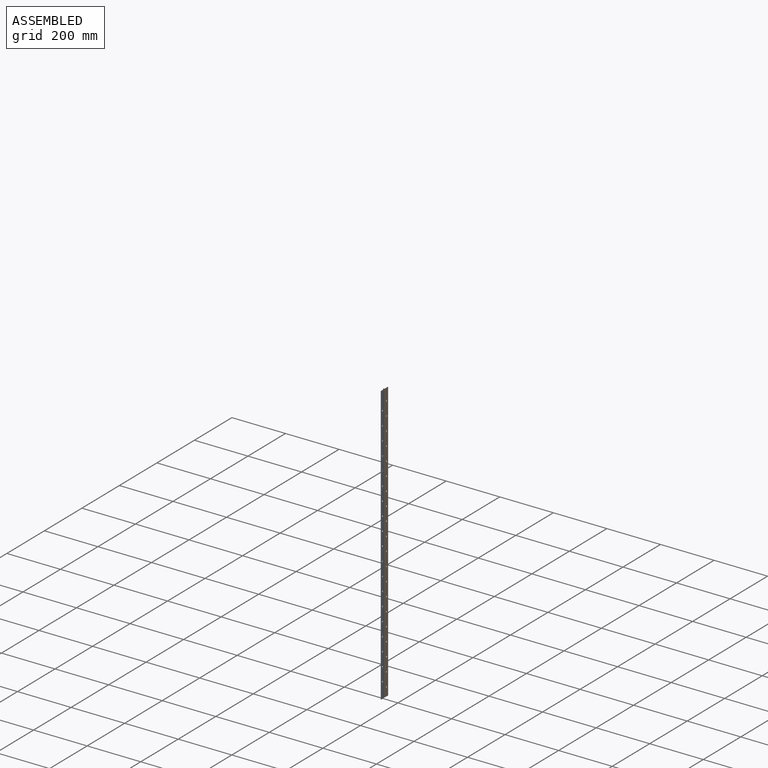
[diagram: assembled view]
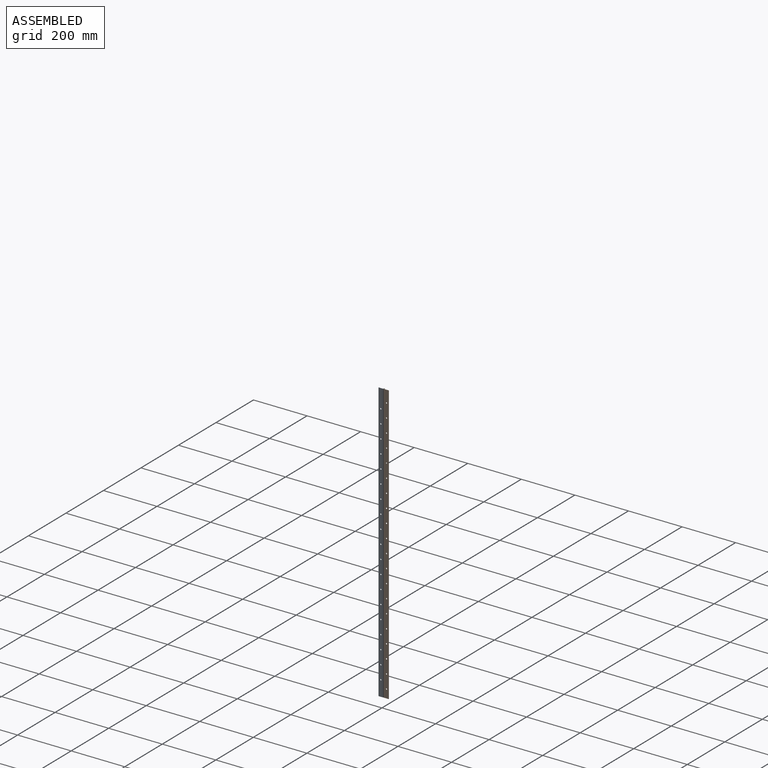
[diagram: assembled view, second angle]
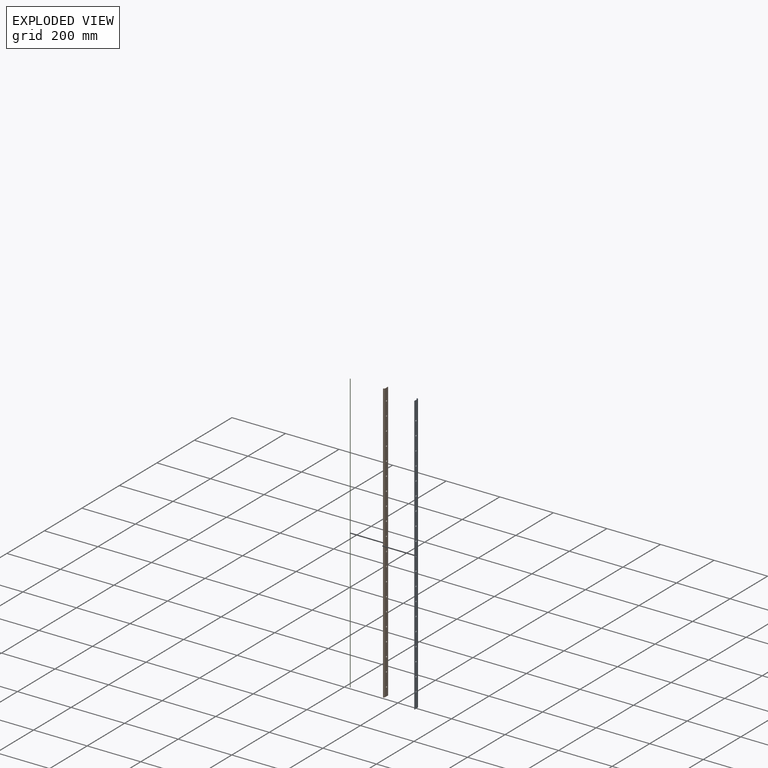
[diagram: exploded view]
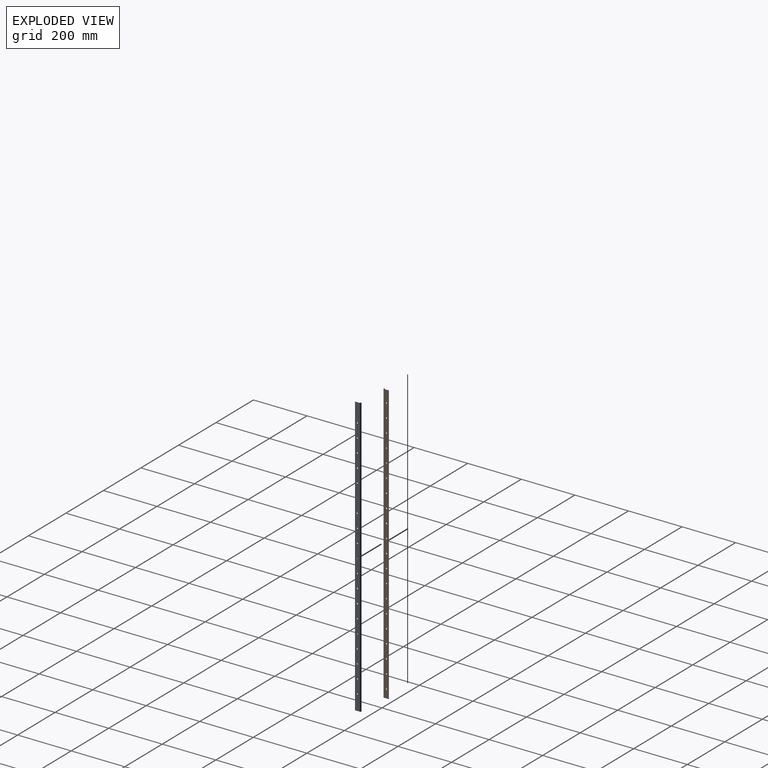
[diagram: exploded view, second angle]
ASSEMBLY  parts=3 mates=3
PART A: 28 faces, bbox 5.4x21.3x1041.4 mm
  f0: plane 21.26x5.38mm, normal (0,0,1), area 29.6mm2, adj f1,f2,f3,f4,f5,f6,f7
  f1: plane 1041.4x16.84mm, normal (-1,0,0), area 17242.5mm2, adj f0,f2,f6,f8,f9,f10,f11,f12
  f2: plane 1041.4x2.98mm, normal (-0.94,-0.35,0), area 3308.7mm2, adj f0,f1,f3,f8
  f3: cylinder r=2.21mm len=1041.4mm, axis (0,0,-1), area 12218.2mm2, adj f0,f2,f5,f8
  f4: cylinder r=1.19mm len=1041.4mm, axis (0,0,-1), area 7790.6mm2, adj f0,f8
  f5: plane 1041.4x0.94mm, normal (0.94,0.35,0), area 1049.6mm2, adj f0,f3,f7,f8
  f6: plane 1041.4x1.02mm, normal (0,1,0), area 1058.1mm2, adj f0,f1,f7,f8
  f7: plane 1041.4x16.84mm, normal (1,0,0), area 17242.5mm2, adj f0,f5,f6,f8,f9,f10,f11,f12
  f8: plane 21.26x5.38mm, normal (0,0,-1), area 29.6mm2, adj f1,f2,f3,f4,f5,f6,f7
  f9: cylinder r=2.22mm len=4.45mm, axis (1,0,0), area 14.2mm2, adj f1,f7
  f10: cylinder r=2.22mm len=4.45mm, axis (1,0,0), area 14.2mm2, adj f1,f7
  f11: cylinder r=2.22mm len=4.45mm, axis (1,0,0), area 14.2mm2, adj f1,f7
  f12: cylinder r=2.22mm len=4.45mm, axis (1,0,0), area 14.2mm2, adj f1,f7
  f13: cylinder r=2.22mm len=4.45mm, axis (1,0,0), area 14.2mm2, adj f1,f7
  f14: cylinder r=2.22mm len=4.45mm, axis (1,0,0), area 14.2mm2, adj f1,f7
  f15: cylinder r=2.22mm len=4.45mm, axis (1,0,0), area 14.2mm2, adj f1,f7
  f16: cylinder r=2.22mm len=4.45mm, axis (1,0,0), area 14.2mm2, adj f1,f7
  f17: cylinder r=2.22mm len=4.45mm, axis (1,0,0), area 14.2mm2, adj f1,f7
  f18: cylinder r=2.22mm len=4.45mm, axis (1,0,0), area 14.2mm2, adj f1,f7
  f19: cylinder r=2.22mm len=4.45mm, axis (1,0,0), area 14.2mm2, adj f1,f7
  f20: cylinder r=2.22mm len=4.45mm, axis (1,0,0), area 14.2mm2, adj f1,f7
  f21: cylinder r=2.22mm len=4.45mm, axis (1,0,0), area 14.2mm2, adj f1,f7
  f22: cylinder r=2.22mm len=4.45mm, axis (1,0,0), area 14.2mm2, adj f1,f7
  f23: cylinder r=2.22mm len=4.45mm, axis (1,0,0), area 14.2mm2, adj f1,f7
  f24: cylinder r=2.22mm len=4.45mm, axis (1,0,0), area 14.2mm2, adj f1,f7
  f25: cylinder r=2.22mm len=4.45mm, axis (1,0,0), area 14.2mm2, adj f1,f7
  f26: cylinder r=2.22mm len=4.45mm, axis (1,0,0), area 14.2mm2, adj f1,f7
  f27: cylinder r=2.22mm len=4.45mm, axis (1,0,0), area 14.2mm2, adj f1,f7
PART B: 29 faces, bbox 5.4x21.3x1041.4 mm
  f0: cylinder r=2.22mm len=4.45mm, axis (-1,0,0), area 14.2mm2, adj f22,f23
  f1: cylinder r=2.22mm len=4.45mm, axis (-1,0,0), area 14.2mm2, adj f22,f23
  f2: cylinder r=2.22mm len=4.45mm, axis (-1,0,0), area 14.2mm2, adj f22,f23
  f3: cylinder r=2.22mm len=4.45mm, axis (-1,0,0), area 14.2mm2, adj f22,f23
  f4: cylinder r=2.22mm len=4.45mm, axis (-1,0,0), area 14.2mm2, adj f22,f23
  f5: cylinder r=2.22mm len=4.45mm, axis (-1,0,0), area 14.2mm2, adj f22,f23
  f6: cylinder r=2.22mm len=4.45mm, axis (-1,0,0), area 14.2mm2, adj f22,f23
  f7: cylinder r=2.22mm len=4.45mm, axis (-1,0,0), area 14.2mm2, adj f22,f23
  f8: cylinder r=2.22mm len=4.45mm, axis (-1,0,0), area 14.2mm2, adj f22,f23
  f9: cylinder r=2.22mm len=4.45mm, axis (-1,0,0), area 14.2mm2, adj f22,f23
  f10: cylinder r=2.22mm len=4.45mm, axis (-1,0,0), area 14.2mm2, adj f22,f23
  f11: cylinder r=2.22mm len=4.45mm, axis (-1,0,0), area 14.2mm2, adj f22,f23
  f12: cylinder r=2.22mm len=4.45mm, axis (-1,0,0), area 14.2mm2, adj f22,f23
  f13: cylinder r=2.22mm len=4.45mm, axis (-1,0,0), area 14.2mm2, adj f22,f23
  f14: cylinder r=2.22mm len=4.45mm, axis (-1,0,0), area 14.2mm2, adj f22,f23
  f15: cylinder r=2.22mm len=4.45mm, axis (-1,0,0), area 14.2mm2, adj f22,f23
  f16: cylinder r=2.22mm len=4.45mm, axis (-1,0,0), area 14.2mm2, adj f22,f23
  f17: cylinder r=2.22mm len=4.45mm, axis (-1,0,0), area 14.2mm2, adj f22,f23
  f18: cylinder r=2.22mm len=4.45mm, axis (-1,0,0), area 14.2mm2, adj f22,f23
  f19: plane 1041.4x1.02mm, normal (0,1,0), area 1058.1mm2, adj f20,f22,f23,f27
  f20: plane 21.26x5.38mm, normal (0,0,1), area 29.6mm2, adj f19,f21,f22,f23,f24,f25,f26
  f21: plane 1041.4x2.98mm, normal (0.94,-0.35,0), area 3308.7mm2, adj f20,f22,f26,f27
  f22: plane 1041.4x16.84mm, normal (1,0,0), area 17227mm2, adj f0,f1,f2,f3,f4,f5,f6,f7
  f23: plane 1041.4x16.84mm, normal (-1,0,0), area 17227mm2, adj f0,f1,f2,f3,f4,f5,f6,f7
  f24: plane 1041.4x0.94mm, normal (-0.94,0.35,0), area 1049.6mm2, adj f20,f23,f26,f27
  f25: cylinder r=1.19mm len=1041.4mm, axis (0,0,-1), area 7790.6mm2, adj f20,f27
  f26: cylinder r=2.21mm len=1041.4mm, axis (0,0,-1), area 12218.2mm2, adj f20,f21,f24,f27
  f27: plane 21.26x5.38mm, normal (0,0,-1), area 29.6mm2, adj f19,f21,f22,f23,f24,f25,f26
  f28: cylinder r=2.22mm len=4.45mm, axis (-1,0,0), area 14.2mm2, adj f22,f23
PART C: 3 faces, bbox 2.4x2.4x1041.4 mm
  f0: plane 2.38x2.38mm, normal (0,0,1), area 4.5mm2, adj f1
  f1: cylinder r=1.19mm len=1041.4mm, axis (0,0,-1), area 7790.6mm2, adj f0,f2
  f2: plane 2.38x2.38mm, normal (0,0,-1), area 4.5mm2, adj f1
PLACE A rot(axis=(0,0,1),180deg) t=(-878.84,-38.1,0)mm
PLACE B at identity fixed
PLACE C rot(axis=(0,0,1),0.5deg) t=(-0.17,3.51,0)mm
MATE revolute C.f1 <-> B.f25  axis (0,0,1) through (-439.42,-19.05,1085.06)mm
MATE revolute A.f3 <-> C.f1  axis (0,0,-1) through (-439.42,-19.05,1085.06)mm
MATE planar A.f1 <-> B.f22  axis (1,0,0) through (-436.24,-29.68,564.47)mm
